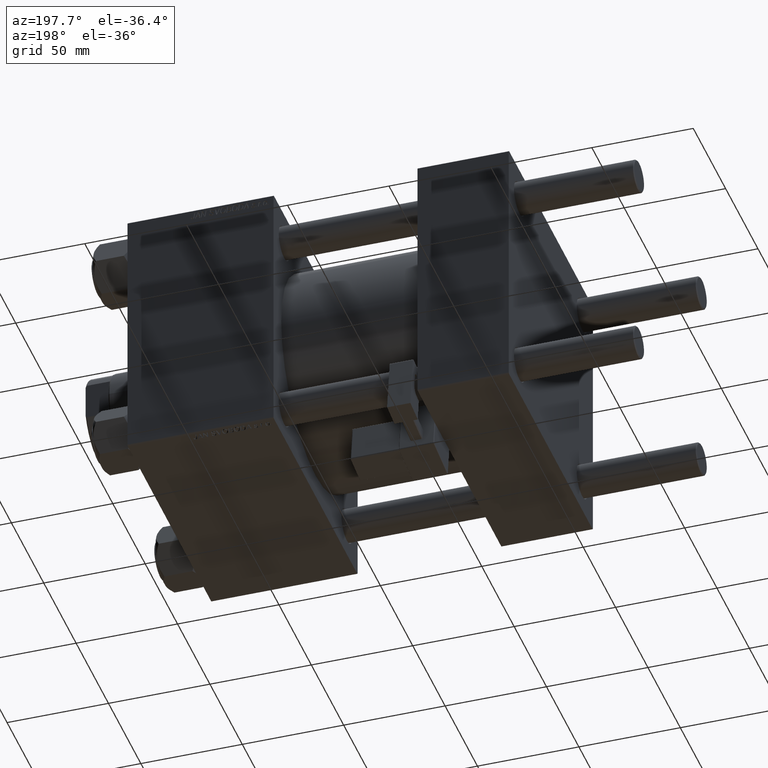
[diagram: clean part render]
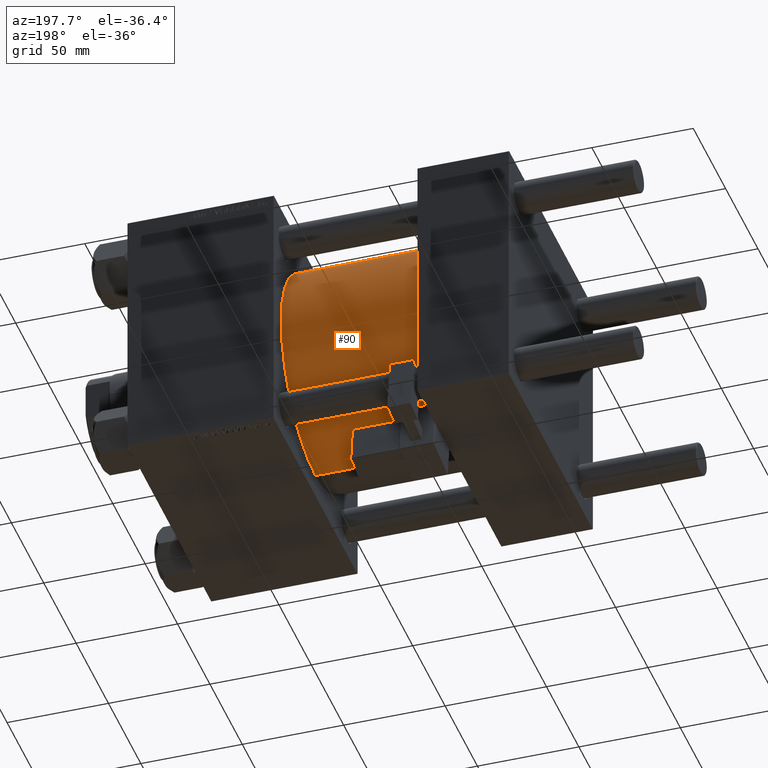
[diagram: same view with one face highlighted and labeled with its STEP entity id]
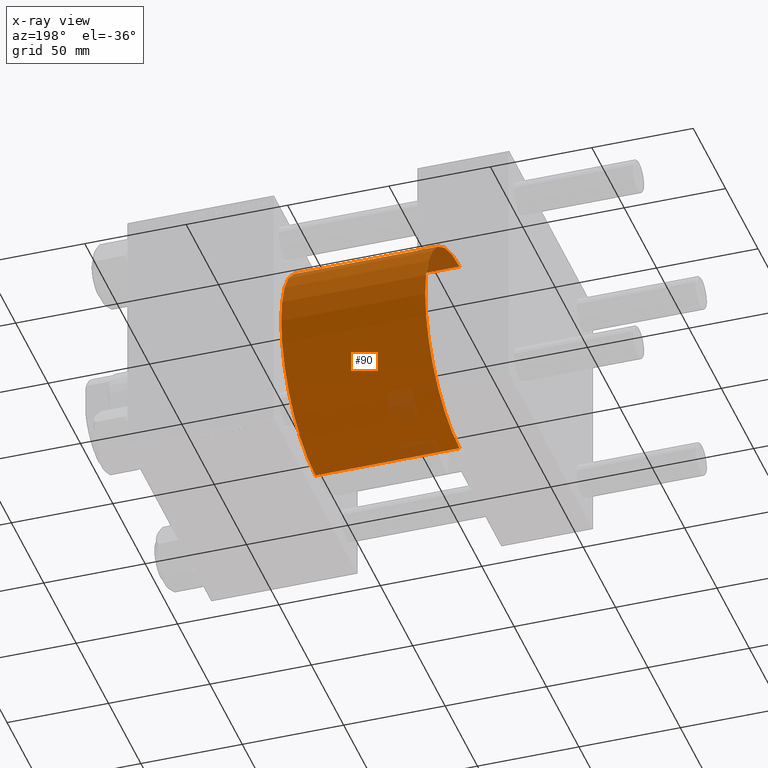
[diagram: x-ray of the same camera — body ghosted, the highlighted face saturated]
A machine part, auxiliary view. The second image highlights one B-rep face of the part: STEP entity #90.
The next image is the same camera in x-ray: the body ghosted, the highlighted face saturated — about 8% of this face is hidden behind the body in this view.
In plain terms, the highlighted cylindrical surface (partial cylindrical patch) has radius 53 mm, axis along (-1, -0, -0).
Its self-contained STEP definition (entity closure, byte-faithful):
#90 = ADVANCED_FACE ( 'NONE', ( #40046 ), #39788, .T. ) ;
#828 = CARTESIAN_POINT ( 'NONE',  ( 115.9999999999999858, 0.000000000000000000, 53.00000000000000711 ) ) ;
#1761 = CARTESIAN_POINT ( 'NONE',  ( 115.9999999999999858, 6.490628035480973107E-15, -53.00000000000000711 ) ) ;
#2735 = VERTEX_POINT ( 'NONE', #28941 ) ;
#2816 = EDGE_LOOP ( 'NONE', ( #25686, #48306, #52118, #18105 ) ) ;
#5717 = DIRECTION ( 'NONE',  ( -1.000000000000000000, -0.000000000000000000, -0.000000000000000000 ) ) ;
#7398 = DIRECTION ( 'NONE',  ( 0.000000000000000000, 0.000000000000000000, 1.000000000000000000 ) ) ;
#8664 = CIRCLE ( 'NONE', #50214, 53.00000000000000711 ) ;
#9617 = EDGE_CURVE ( 'NONE', #50026, #2735, #35460, .T. ) ;
#10794 = DIRECTION ( 'NONE',  ( -1.000000000000000000, -0.000000000000000000, -0.000000000000000000 ) ) ;
#11443 = VECTOR ( 'NONE', #5717, 1000.000000000000000 ) ;
#15842 = CARTESIAN_POINT ( 'NONE',  ( 115.9999999999999858, 6.490628035480973107E-15, -53.00000000000000711 ) ) ;
#15982 = AXIS2_PLACEMENT_3D ( 'NONE', #19366, #35528, #7398 ) ;
#18105 = ORIENTED_EDGE ( 'NONE', *, *, #29272, .F. ) ;
#18618 = EDGE_CURVE ( 'NONE', #2735, #38316, #40694, .T. ) ;
#18983 = CARTESIAN_POINT ( 'NONE',  ( 115.9999999999999858, 0.000000000000000000, 0.000000000000000000 ) ) ;
#19327 = VERTEX_POINT ( 'NONE', #828 ) ;
#19366 = CARTESIAN_POINT ( 'NONE',  ( 115.9999999999999858, 0.000000000000000000, 0.000000000000000000 ) ) ;
#24469 = DIRECTION ( 'NONE',  ( 1.000000000000000000, -0.000000000000000000, 0.000000000000000000 ) ) ;
#25686 = ORIENTED_EDGE ( 'NONE', *, *, #33775, .F. ) ;
#27726 = DIRECTION ( 'NONE',  ( 1.000000000000000000, 0.000000000000000000, 0.000000000000000000 ) ) ;
#28454 = CARTESIAN_POINT ( 'NONE',  ( 45.00000000000000000, 0.000000000000000000, 0.000000000000000000 ) ) ;
#28941 = CARTESIAN_POINT ( 'NONE',  ( 45.00000000000000000, 6.490628035480973107E-15, -53.00000000000000711 ) ) ;
#29272 = EDGE_CURVE ( 'NONE', #19327, #38316, #31173, .T. ) ;
#29689 = AXIS2_PLACEMENT_3D ( 'NONE', #28454, #24469, #40652 ) ;
#31173 = LINE ( 'NONE', #47374, #11443 ) ;
#33775 = EDGE_CURVE ( 'NONE', #50026, #19327, #8664, .T. ) ;
#35460 = LINE ( 'NONE', #15842, #39688 ) ;
#35528 = DIRECTION ( 'NONE',  ( -1.000000000000000000, -0.000000000000000000, -0.000000000000000000 ) ) ;
#38316 = VERTEX_POINT ( 'NONE', #49097 ) ;
#39688 = VECTOR ( 'NONE', #10794, 1000.000000000000000 ) ;
#39788 = CYLINDRICAL_SURFACE ( 'NONE', #15982, 53.00000000000000711 ) ;
#40046 = FACE_OUTER_BOUND ( 'NONE', #2816, .T. ) ;
#40652 = DIRECTION ( 'NONE',  ( 0.000000000000000000, 0.000000000000000000, 1.000000000000000000 ) ) ;
#40694 = CIRCLE ( 'NONE', #29689, 53.00000000000000711 ) ;
#43908 = DIRECTION ( 'NONE',  ( 0.000000000000000000, 0.000000000000000000, -1.000000000000000000 ) ) ;
#47374 = CARTESIAN_POINT ( 'NONE',  ( 115.9999999999999858, 0.000000000000000000, 53.00000000000000711 ) ) ;
#48306 = ORIENTED_EDGE ( 'NONE', *, *, #9617, .T. ) ;
#49097 = CARTESIAN_POINT ( 'NONE',  ( 45.00000000000000000, 0.000000000000000000, 53.00000000000000711 ) ) ;
#50026 = VERTEX_POINT ( 'NONE', #1761 ) ;
#50214 = AXIS2_PLACEMENT_3D ( 'NONE', #18983, #27726, #43908 ) ;
#52118 = ORIENTED_EDGE ( 'NONE', *, *, #18618, .T. ) ;